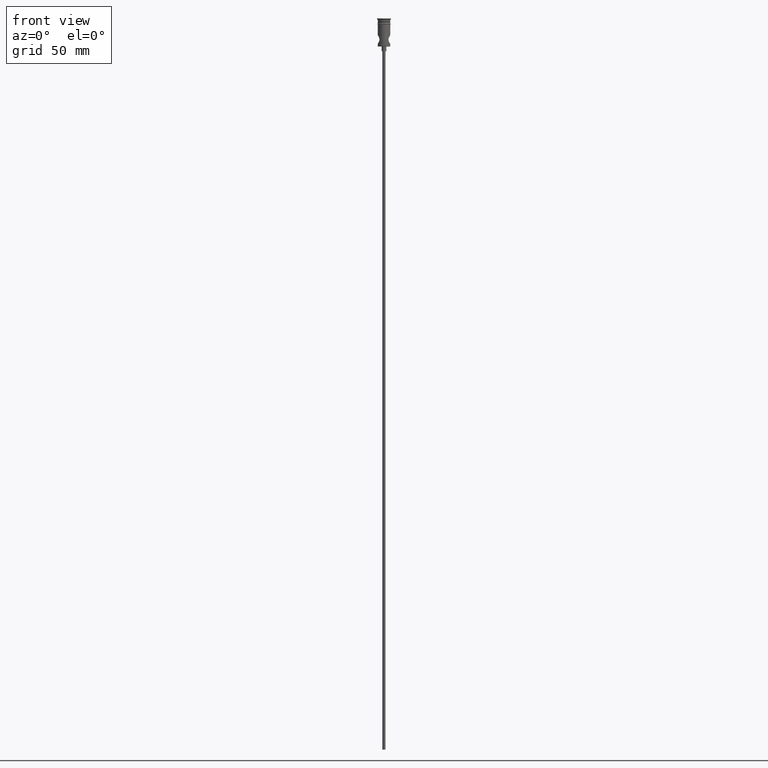
[diagram: clean part render]
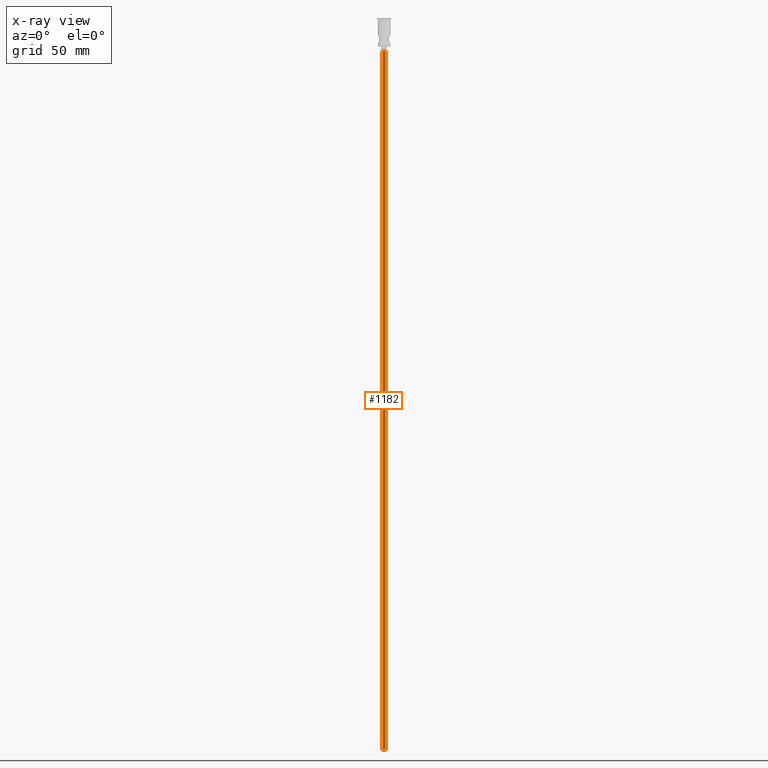
[diagram: x-ray — body ghosted, one internal face saturated and labeled with its STEP entity id]
A machine part, front view, then the same camera in x-ray: the body is ghosted and one INTERNAL B-rep face — a face not visible from any outside direction — is saturated and labeled: STEP entity #1182.
In plain terms, the highlighted cylindrical surface (edge-blend (fillet) strip) has radius 1 mm, axis along (-0, -0, 1).
Its self-contained STEP definition (entity closure, byte-faithful):
#4 = DIRECTION ( 'NONE',  ( 1.000000000000000000, 0.000000000000000000, 0.000000000000000000 ) ) ;
#94 = DIRECTION ( 'NONE',  ( -0.000000000000000000, -0.000000000000000000, 1.000000000000000000 ) ) ;
#122 = AXIS2_PLACEMENT_3D ( 'NONE', #1377, #395, #1275 ) ;
#241 = LINE ( 'NONE', #681, #768 ) ;
#272 = VECTOR ( 'NONE', #1218, 1000.000000000000000 ) ;
#276 = ORIENTED_EDGE ( 'NONE', *, *, #1122, .F. ) ;
#283 = EDGE_CURVE ( 'NONE', #786, #421, #1204, .T. ) ;
#320 = VERTEX_POINT ( 'NONE', #344 ) ;
#328 = DIRECTION ( 'NONE',  ( -1.000000000000000000, 0.000000000000000000, 0.000000000000000000 ) ) ;
#344 = CARTESIAN_POINT ( 'NONE',  ( 0.9999999999999997780, 0.000000000000000000, -468.0000000000000000 ) ) ;
#346 = AXIS2_PLACEMENT_3D ( 'NONE', #854, #94, #4 ) ;
#368 = ORIENTED_EDGE ( 'NONE', *, *, #283, .T. ) ;
#395 = DIRECTION ( 'NONE',  ( 0.000000000000000000, 0.000000000000000000, -1.000000000000000000 ) ) ;
#421 = VERTEX_POINT ( 'NONE', #858 ) ;
#424 = CYLINDRICAL_SURFACE ( 'NONE', #346, 0.9999999999999997780 ) ;
#503 = ORIENTED_EDGE ( 'NONE', *, *, #1043, .F. ) ;
#571 = AXIS2_PLACEMENT_3D ( 'NONE', #988, #888, #328 ) ;
#641 = LINE ( 'NONE', #733, #272 ) ;
#681 = CARTESIAN_POINT ( 'NONE',  ( 0.9999999999999997780, 0.000000000000000000, -468.0000000000000000 ) ) ;
#720 = EDGE_LOOP ( 'NONE', ( #276, #971, #368, #503 ) ) ;
#733 = CARTESIAN_POINT ( 'NONE',  ( -0.9999999999999997780, 1.224646799147352961E-16, -468.0000000000000000 ) ) ;
#768 = VECTOR ( 'NONE', #1141, 1000.000000000000000 ) ;
#786 = VERTEX_POINT ( 'NONE', #1299 ) ;
#803 = CARTESIAN_POINT ( 'NONE',  ( -0.9999999999999997780, 1.224646799147352961E-16, -468.0000000000000000 ) ) ;
#854 = CARTESIAN_POINT ( 'NONE',  ( 0.000000000000000000, 0.000000000000000000, -468.0000000000000000 ) ) ;
#858 = CARTESIAN_POINT ( 'NONE',  ( 0.9999999999999997780, 0.000000000000000000, -20.99999999999999645 ) ) ;
#859 = EDGE_CURVE ( 'NONE', #1066, #786, #641, .T. ) ;
#888 = DIRECTION ( 'NONE',  ( 0.000000000000000000, 0.000000000000000000, -1.000000000000000000 ) ) ;
#953 = FACE_OUTER_BOUND ( 'NONE', #720, .T. ) ;
#971 = ORIENTED_EDGE ( 'NONE', *, *, #859, .T. ) ;
#988 = CARTESIAN_POINT ( 'NONE',  ( 0.000000000000000000, 0.000000000000000000, -20.99999999999999645 ) ) ;
#1010 = CIRCLE ( 'NONE', #122, 0.9999999999999997780 ) ;
#1043 = EDGE_CURVE ( 'NONE', #320, #421, #241, .T. ) ;
#1066 = VERTEX_POINT ( 'NONE', #803 ) ;
#1122 = EDGE_CURVE ( 'NONE', #1066, #320, #1010, .T. ) ;
#1141 = DIRECTION ( 'NONE',  ( -0.000000000000000000, -0.000000000000000000, 1.000000000000000000 ) ) ;
#1182 = ADVANCED_FACE ( 'NONE', ( #953 ), #424, .T. ) ;
#1204 = CIRCLE ( 'NONE', #571, 0.9999999999999997780 ) ;
#1218 = DIRECTION ( 'NONE',  ( -0.000000000000000000, -0.000000000000000000, 1.000000000000000000 ) ) ;
#1275 = DIRECTION ( 'NONE',  ( -1.000000000000000000, 0.000000000000000000, 0.000000000000000000 ) ) ;
#1299 = CARTESIAN_POINT ( 'NONE',  ( -0.9999999999999997780, 1.224646799147352961E-16, -20.99999999999999645 ) ) ;
#1377 = CARTESIAN_POINT ( 'NONE',  ( 0.000000000000000000, 0.000000000000000000, -468.0000000000000000 ) ) ;